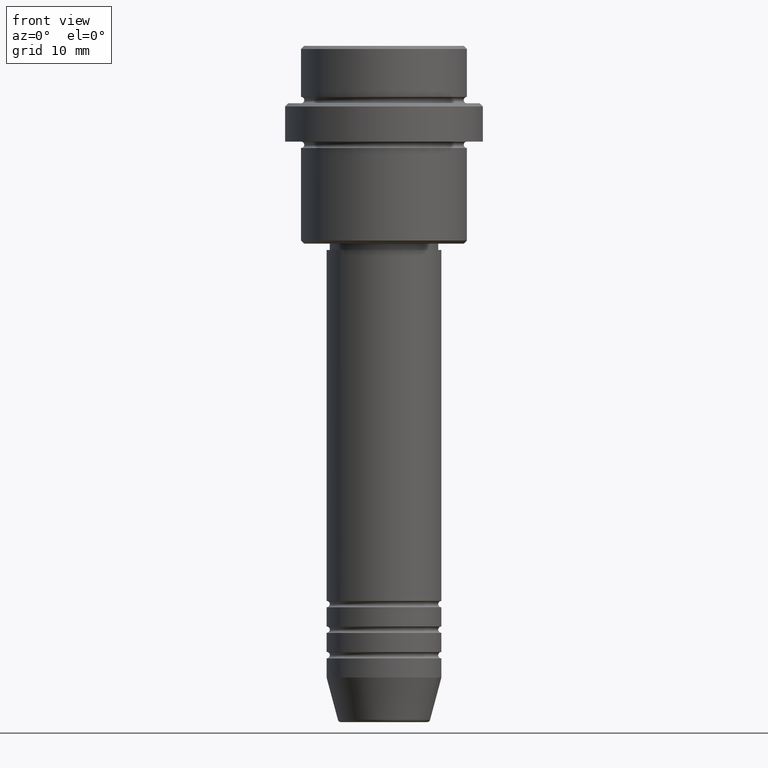
[diagram: clean part render]
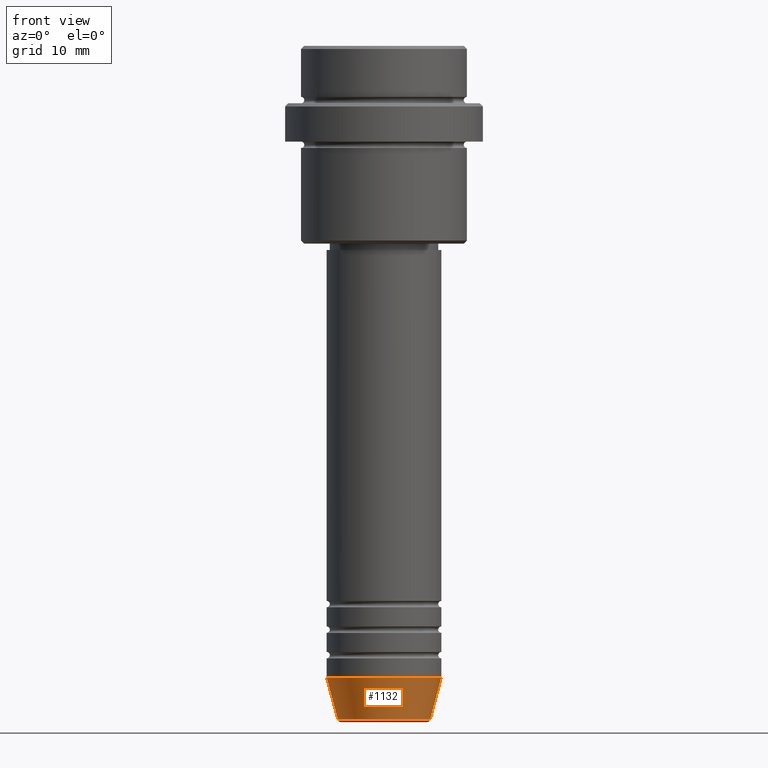
[diagram: same view with one face highlighted and labeled with its STEP entity id]
A machine part, front view. The second image highlights one B-rep face of the part: STEP entity #1132.
In plain terms, the highlighted conical surface has half-angle 15 deg.
Its self-contained STEP definition (entity closure, byte-faithful):
#15 = CARTESIAN_POINT ( 'NONE',  ( -9.000000000000000000, 1.102182119232617714E-15, -99.00000000000000000 ) ) ;
#19 = LINE ( 'NONE', #15, #594 ) ;
#29 = VERTEX_POINT ( 'NONE', #346 ) ;
#42 = CARTESIAN_POINT ( 'NONE',  ( -9.000000000000000000, 1.102182119232617714E-15, -99.00000000000000000 ) ) ;
#85 = EDGE_CURVE ( 'NONE', #399, #1077, #19, .T. ) ;
#88 = DIRECTION ( 'NONE',  ( 0.2588190451025213501, 0.000000000000000000, 0.9659258262890680902 ) ) ;
#159 = CARTESIAN_POINT ( 'NONE',  ( 0.000000000000000000, 0.000000000000000000, -99.00000000000000000 ) ) ;
#278 = VECTOR ( 'NONE', #88, 1000.000000000000000 ) ;
#346 = CARTESIAN_POINT ( 'NONE',  ( 9.000000000000000000, 0.000000000000000000, -99.00000000000000000 ) ) ;
#348 = EDGE_CURVE ( 'NONE', #399, #409, #616, .T. ) ;
#396 = CIRCLE ( 'NONE', #418, 9.000000000000000000 ) ;
#399 = VERTEX_POINT ( 'NONE', #675 ) ;
#409 = VERTEX_POINT ( 'NONE', #1411 ) ;
#415 = AXIS2_PLACEMENT_3D ( 'NONE', #1400, #416, #1049 ) ;
#416 = DIRECTION ( 'NONE',  ( -0.000000000000000000, -0.000000000000000000, 1.000000000000000000 ) ) ;
#418 = AXIS2_PLACEMENT_3D ( 'NONE', #679, #1337, #685 ) ;
#452 = DIRECTION ( 'NONE',  ( -0.2588190451025213501, 3.169619151431772337E-17, 0.9659258262890680902 ) ) ;
#594 = VECTOR ( 'NONE', #452, 1000.000000000000000 ) ;
#598 = AXIS2_PLACEMENT_3D ( 'NONE', #159, #1279, #610 ) ;
#610 = DIRECTION ( 'NONE',  ( 1.000000000000000000, 0.000000000000000000, 0.000000000000000000 ) ) ;
#616 = CIRCLE ( 'NONE', #415, 7.223655072137197486 ) ;
#633 = LINE ( 'NONE', #648, #278 ) ;
#648 = CARTESIAN_POINT ( 'NONE',  ( 9.000000000000000000, 0.000000000000000000, -99.00000000000000000 ) ) ;
#675 = CARTESIAN_POINT ( 'NONE',  ( -7.223655072137198374, 9.934123627281771026E-16, -105.6294095225512422 ) ) ;
#679 = CARTESIAN_POINT ( 'NONE',  ( 0.000000000000000000, 0.000000000000000000, -99.00000000000000000 ) ) ;
#685 = DIRECTION ( 'NONE',  ( 1.000000000000000000, 0.000000000000000000, 0.000000000000000000 ) ) ;
#730 = ORIENTED_EDGE ( 'NONE', *, *, #348, .T. ) ;
#808 = ORIENTED_EDGE ( 'NONE', *, *, #85, .F. ) ;
#840 = EDGE_CURVE ( 'NONE', #409, #29, #633, .T. ) ;
#841 = FACE_OUTER_BOUND ( 'NONE', #888, .T. ) ;
#888 = EDGE_LOOP ( 'NONE', ( #808, #730, #964, #971 ) ) ;
#950 = EDGE_CURVE ( 'NONE', #1077, #29, #396, .T. ) ;
#964 = ORIENTED_EDGE ( 'NONE', *, *, #840, .T. ) ;
#971 = ORIENTED_EDGE ( 'NONE', *, *, #950, .F. ) ;
#1049 = DIRECTION ( 'NONE',  ( 1.000000000000000000, 0.000000000000000000, 0.000000000000000000 ) ) ;
#1077 = VERTEX_POINT ( 'NONE', #42 ) ;
#1128 = CONICAL_SURFACE ( 'NONE', #598, 9.000000000000000000, 0.2617993877991500740 ) ;
#1132 = ADVANCED_FACE ( 'NONE', ( #841 ), #1128, .T. ) ;
#1279 = DIRECTION ( 'NONE',  ( -0.000000000000000000, -0.000000000000000000, 1.000000000000000000 ) ) ;
#1337 = DIRECTION ( 'NONE',  ( -0.000000000000000000, -0.000000000000000000, 1.000000000000000000 ) ) ;
#1400 = CARTESIAN_POINT ( 'NONE',  ( 0.000000000000000000, 0.000000000000000000, -105.6294095225512422 ) ) ;
#1411 = CARTESIAN_POINT ( 'NONE',  ( 7.223655072137197486, 0.000000000000000000, -105.6294095225512422 ) ) ;